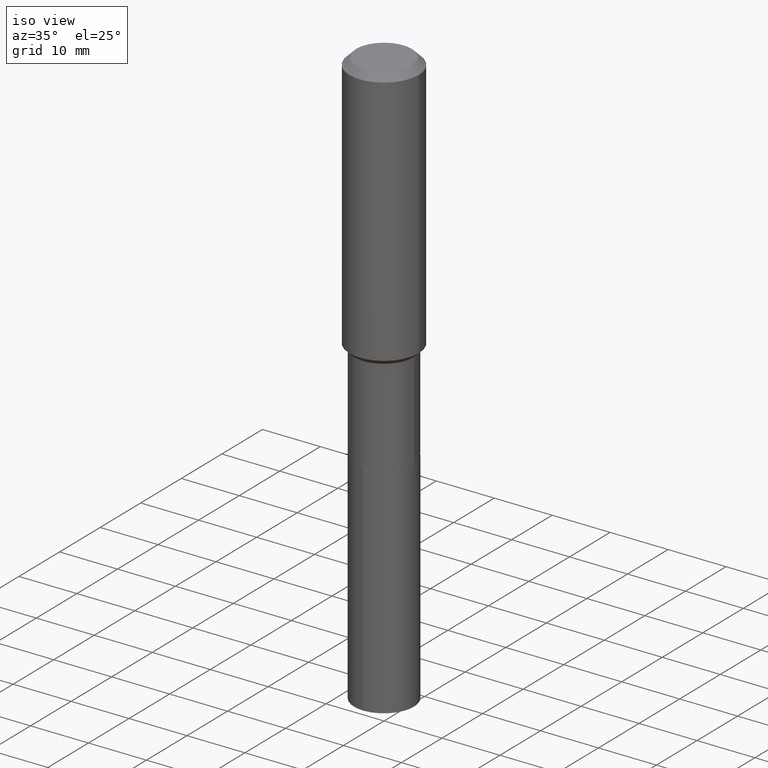
[diagram: clean part render]
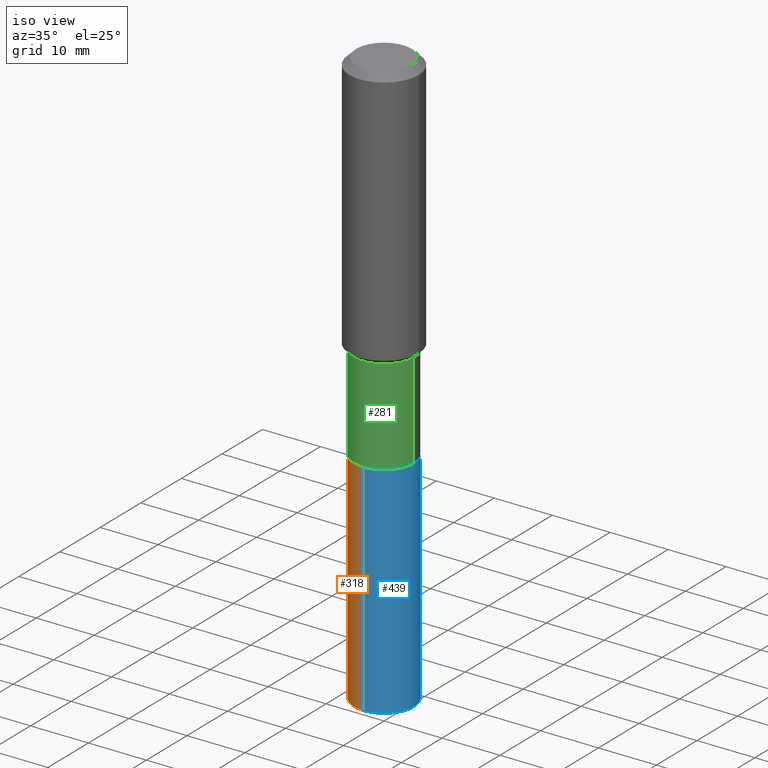
[diagram: same view with three faces highlighted in distinct colors, each labeled with its STEP entity id]
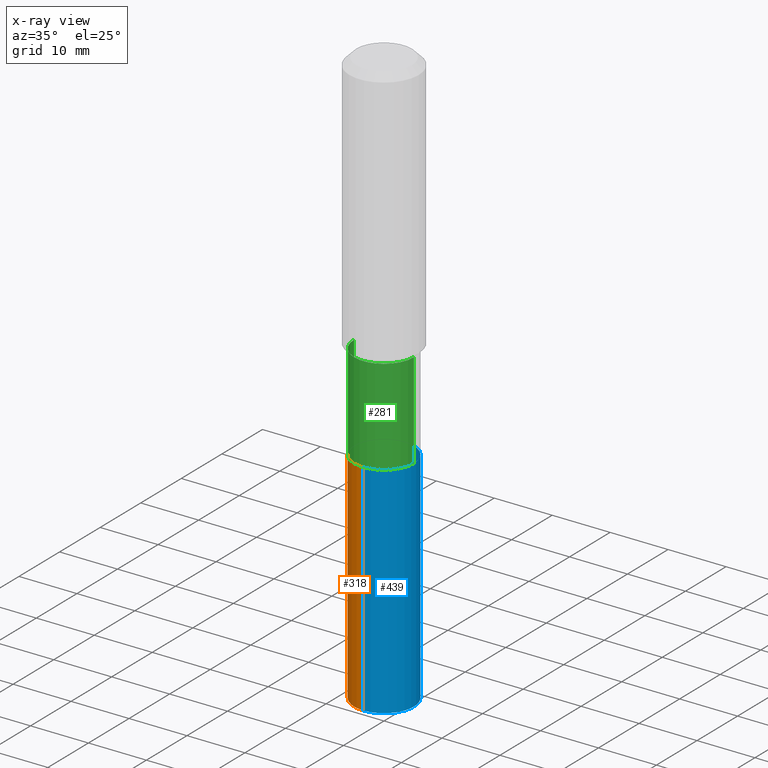
[diagram: x-ray of the same camera — body ghosted, the three highlighted faces saturated]
A machine part, iso view with three faces highlighted in distinct colors.
The next image is the same camera in x-ray (body ghosted, the three faces saturated) — at least one of them is partly hidden behind the body in this view.
Their STEP definitions:

[orange] entity #318 — the highlighted cylindrical surface (edge-blend (fillet) strip) has radius 5.1498 mm, axis along (-0, 0, 1).
#7 = LINE ( 'NONE', #458, #246 ) ;
#28 = CARTESIAN_POINT ( 'NONE',  ( -1.415795682900794232E-15, -0.2027500000000137803, -3.935834651069069601 ) ) ;
#45 = CARTESIAN_POINT ( 'NONE',  ( 1.440625396753699464E-15, 0.2027499999999914648, -2.440900000000000514 ) ) ;
#78 = VECTOR ( 'NONE', #87, 39.37007874015748143 ) ;
#82 = ORIENTED_EDGE ( 'NONE', *, *, #342, .F. ) ;
#83 = ORIENTED_EDGE ( 'NONE', *, *, #375, .F. ) ;
#85 = ORIENTED_EDGE ( 'NONE', *, *, #355, .T. ) ;
#87 = DIRECTION ( 'NONE',  ( -2.445399602320894689E-29, 3.491580442715579660E-15, 1.000000000000000000 ) ) ;
#106 = CYLINDRICAL_SURFACE ( 'NONE', #114, 0.2027500000000000135 ) ;
#114 = AXIS2_PLACEMENT_3D ( 'NONE', #213, #249, #412 ) ;
#146 = AXIS2_PLACEMENT_3D ( 'NONE', #456, #340, #294 ) ;
#175 = CARTESIAN_POINT ( 'NONE',  ( -1.415795682900830717E-15, -0.2027500000000085345, -2.440899999999999181 ) ) ;
#192 = CARTESIAN_POINT ( 'NONE',  ( 1.440625396753662585E-15, 0.2027499999999914648, -2.440900000000000514 ) ) ;
#213 = CARTESIAN_POINT ( 'NONE',  ( 5.969144809017299038E-29, -8.522356799982232966E-15, -2.440900000000000070 ) ) ;
#221 = VERTEX_POINT ( 'NONE', #175 ) ;
#223 = DIRECTION ( 'NONE',  ( -2.445399602320894689E-29, 3.491580442715579660E-15, 1.000000000000000000 ) ) ;
#246 = VECTOR ( 'NONE', #223, 39.37007874015748143 ) ;
#249 = DIRECTION ( 'NONE',  ( -2.445399602320894408E-29, 3.491580442715579660E-15, 1.000000000000000000 ) ) ;
#260 = EDGE_LOOP ( 'NONE', ( #82, #370, #85, #83 ) ) ;
#291 = LINE ( 'NONE', #192, #78 ) ;
#294 = DIRECTION ( 'NONE',  ( -6.982962677686265922E-15, -1.000000000000000000, 2.694794568349458162E-15 ) ) ;
#297 = CIRCLE ( 'NONE', #146, 0.2027500000000000135 ) ;
#307 = AXIS2_PLACEMENT_3D ( 'NONE', #420, #378, #430 ) ;
#318 = ADVANCED_FACE ( 'NONE', ( #485 ), #106, .T. ) ;
#332 = CARTESIAN_POINT ( 'NONE',  ( 1.440625396753699859E-15, 0.2027499999999863578, -3.935834651069070933 ) ) ;
#340 = DIRECTION ( 'NONE',  ( -2.445399602320894408E-29, 3.491580442715579660E-15, 1.000000000000000000 ) ) ;
#342 = EDGE_CURVE ( 'NONE', #372, #385, #291, .T. ) ;
#351 = EDGE_CURVE ( 'NONE', #372, #459, #297, .T. ) ;
#355 = EDGE_CURVE ( 'NONE', #459, #221, #7, .T. ) ;
#365 = CIRCLE ( 'NONE', #307, 0.2027500000000000135 ) ;
#370 = ORIENTED_EDGE ( 'NONE', *, *, #351, .T. ) ;
#372 = VERTEX_POINT ( 'NONE', #332 ) ;
#375 = EDGE_CURVE ( 'NONE', #385, #221, #365, .T. ) ;
#378 = DIRECTION ( 'NONE',  ( -2.445399602320894408E-29, 3.491580442715579660E-15, 1.000000000000000000 ) ) ;
#385 = VERTEX_POINT ( 'NONE', #45 ) ;
#412 = DIRECTION ( 'NONE',  ( -6.982962677686265922E-15, -1.000000000000000000, 4.042191852524186848E-15 ) ) ;
#420 = CARTESIAN_POINT ( 'NONE',  ( 5.969144809017299038E-29, -8.522356799982232966E-15, -2.440900000000000070 ) ) ;
#430 = DIRECTION ( 'NONE',  ( -6.982962677686265922E-15, -1.000000000000000000, 4.042191852524186848E-15 ) ) ;
#456 = CARTESIAN_POINT ( 'NONE',  ( 9.624857410237329995E-29, -1.374204139079284001E-14, -3.935834651069070045 ) ) ;
#458 = CARTESIAN_POINT ( 'NONE',  ( -1.415795682900830717E-15, -0.2027500000000085345, -2.440899999999999181 ) ) ;
#459 = VERTEX_POINT ( 'NONE', #28 ) ;
#485 = FACE_OUTER_BOUND ( 'NONE', #260, .T. ) ;

[blue] entity #439 — the highlighted cylindrical surface (edge-blend (fillet) strip) has radius 5.1498 mm, axis along (-0, 0, 1).
#7 = LINE ( 'NONE', #458, #246 ) ;
#16 = DIRECTION ( 'NONE',  ( -2.445399602320894408E-29, 3.491580442715579660E-15, 1.000000000000000000 ) ) ;
#18 = CIRCLE ( 'NONE', #428, 0.2027500000000000135 ) ;
#28 = CARTESIAN_POINT ( 'NONE',  ( -1.415795682900794232E-15, -0.2027500000000137803, -3.935834651069069601 ) ) ;
#45 = CARTESIAN_POINT ( 'NONE',  ( 1.440625396753699464E-15, 0.2027499999999914648, -2.440900000000000514 ) ) ;
#61 = CARTESIAN_POINT ( 'NONE',  ( 5.969144809017299038E-29, -8.522356799982232966E-15, -2.440900000000000070 ) ) ;
#74 = CARTESIAN_POINT ( 'NONE',  ( 9.624857410237329995E-29, -1.374204139079284001E-14, -3.935834651069070045 ) ) ;
#78 = VECTOR ( 'NONE', #87, 39.37007874015748143 ) ;
#87 = DIRECTION ( 'NONE',  ( -2.445399602320894689E-29, 3.491580442715579660E-15, 1.000000000000000000 ) ) ;
#113 = ORIENTED_EDGE ( 'NONE', *, *, #300, .T. ) ;
#124 = EDGE_LOOP ( 'NONE', ( #113, #341, #330, #335 ) ) ;
#140 = CARTESIAN_POINT ( 'NONE',  ( 5.969144809017299038E-29, -8.522356799982232966E-15, -2.440900000000000070 ) ) ;
#152 = AXIS2_PLACEMENT_3D ( 'NONE', #140, #177, #319 ) ;
#175 = CARTESIAN_POINT ( 'NONE',  ( -1.415795682900830717E-15, -0.2027500000000085345, -2.440899999999999181 ) ) ;
#177 = DIRECTION ( 'NONE',  ( -2.445399602320894408E-29, 3.491580442715579660E-15, 1.000000000000000000 ) ) ;
#192 = CARTESIAN_POINT ( 'NONE',  ( 1.440625396753662585E-15, 0.2027499999999914648, -2.440900000000000514 ) ) ;
#193 = CIRCLE ( 'NONE', #152, 0.2027500000000000135 ) ;
#209 = FACE_OUTER_BOUND ( 'NONE', #124, .T. ) ;
#221 = VERTEX_POINT ( 'NONE', #175 ) ;
#223 = DIRECTION ( 'NONE',  ( -2.445399602320894689E-29, 3.491580442715579660E-15, 1.000000000000000000 ) ) ;
#243 = DIRECTION ( 'NONE',  ( -6.982962677686265922E-15, -1.000000000000000000, 2.694794568349458162E-15 ) ) ;
#246 = VECTOR ( 'NONE', #223, 39.37007874015748143 ) ;
#278 = EDGE_CURVE ( 'NONE', #221, #385, #193, .T. ) ;
#291 = LINE ( 'NONE', #192, #78 ) ;
#300 = EDGE_CURVE ( 'NONE', #459, #372, #18, .T. ) ;
#319 = DIRECTION ( 'NONE',  ( -6.982962677686265922E-15, -1.000000000000000000, 4.042191852524186848E-15 ) ) ;
#330 = ORIENTED_EDGE ( 'NONE', *, *, #278, .F. ) ;
#331 = AXIS2_PLACEMENT_3D ( 'NONE', #61, #16, #400 ) ;
#332 = CARTESIAN_POINT ( 'NONE',  ( 1.440625396753699859E-15, 0.2027499999999863578, -3.935834651069070933 ) ) ;
#335 = ORIENTED_EDGE ( 'NONE', *, *, #355, .F. ) ;
#341 = ORIENTED_EDGE ( 'NONE', *, *, #342, .T. ) ;
#342 = EDGE_CURVE ( 'NONE', #372, #385, #291, .T. ) ;
#355 = EDGE_CURVE ( 'NONE', #459, #221, #7, .T. ) ;
#372 = VERTEX_POINT ( 'NONE', #332 ) ;
#385 = VERTEX_POINT ( 'NONE', #45 ) ;
#400 = DIRECTION ( 'NONE',  ( -6.982962677686265922E-15, -1.000000000000000000, 4.042191852524186848E-15 ) ) ;
#428 = AXIS2_PLACEMENT_3D ( 'NONE', #74, #454, #243 ) ;
#439 = ADVANCED_FACE ( 'NONE', ( #209 ), #443, .T. ) ;
#443 = CYLINDRICAL_SURFACE ( 'NONE', #331, 0.2027500000000000135 ) ;
#454 = DIRECTION ( 'NONE',  ( -2.445399602320894408E-29, 3.491580442715579660E-15, 1.000000000000000000 ) ) ;
#458 = CARTESIAN_POINT ( 'NONE',  ( -1.415795682900830717E-15, -0.2027500000000085345, -2.440899999999999181 ) ) ;
#459 = VERTEX_POINT ( 'NONE', #28 ) ;

[green] entity #281 — the highlighted cylindrical surface (edge-blend (fillet) strip) has radius 5.1498 mm, axis along (-0, 0, 1).
#5 = VERTEX_POINT ( 'NONE', #440 ) ;
#10 = CIRCLE ( 'NONE', #313, 0.2027500000000000135 ) ;
#33 = CIRCLE ( 'NONE', #373, 0.2027499999999999303 ) ;
#34 = DIRECTION ( 'NONE',  ( 1.000000000000000000, -6.982962677686266711E-15, 4.876176775795935793E-29 ) ) ;
#50 = VECTOR ( 'NONE', #51, 39.37007874015748143 ) ;
#51 = DIRECTION ( 'NONE',  ( -2.445468806185136877E-29, 3.491481338843145188E-15, 1.000000000000000000 ) ) ;
#96 = DIRECTION ( 'NONE',  ( 1.000000000000000000, -6.982962677686266711E-15, 0.000000000000000000 ) ) ;
#111 = LINE ( 'NONE', #261, #139 ) ;
#132 = EDGE_CURVE ( 'NONE', #382, #447, #33, .T. ) ;
#139 = VECTOR ( 'NONE', #254, 39.37007874015748143 ) ;
#155 = CARTESIAN_POINT ( 'NONE',  ( 0.2027499999999999858, -1.415795682900890473E-15, 9.886448412926258951E-30 ) ) ;
#156 = ORIENTED_EDGE ( 'NONE', *, *, #384, .T. ) ;
#233 = DIRECTION ( 'NONE',  ( -2.445468806185136597E-29, 3.491481338843145583E-15, 1.000000000000000000 ) ) ;
#234 = DIRECTION ( 'NONE',  ( -2.445468806185136597E-29, 3.491481338843145583E-15, 1.000000000000000000 ) ) ;
#244 = ORIENTED_EDGE ( 'NONE', *, *, #132, .F. ) ;
#254 = DIRECTION ( 'NONE',  ( -2.445468806185136877E-29, 3.491481338843145188E-15, 1.000000000000000000 ) ) ;
#261 = CARTESIAN_POINT ( 'NONE',  ( -0.2027499999999999858, 1.440625396753603026E-15, -9.973140895491819537E-30 ) ) ;
#269 = EDGE_LOOP ( 'NONE', ( #468, #449, #156, #244 ) ) ;
#281 = ADVANCED_FACE ( 'NONE', ( #363 ), #369, .T. ) ;
#285 = DIRECTION ( 'NONE',  ( -2.445468806185136597E-29, 3.491481338843145583E-15, 1.000000000000000000 ) ) ;
#298 = LINE ( 'NONE', #155, #50 ) ;
#310 = CARTESIAN_POINT ( 'NONE',  ( 4.376166428668302424E-29, -6.248005855859809764E-15, -1.789500000000000091 ) ) ;
#313 = AXIS2_PLACEMENT_3D ( 'NONE', #483, #234, #96 ) ;
#322 = AXIS2_PLACEMENT_3D ( 'NONE', #489, #285, #34 ) ;
#345 = CARTESIAN_POINT ( 'NONE',  ( 0.2027500000000000135, -9.936406742213702921E-15, -2.440399999999999903 ) ) ;
#363 = FACE_OUTER_BOUND ( 'NONE', #269, .T. ) ;
#369 = CYLINDRICAL_SURFACE ( 'NONE', #322, 0.2027499999999999858 ) ;
#373 = AXIS2_PLACEMENT_3D ( 'NONE', #310, #233, #393 ) ;
#381 = CARTESIAN_POINT ( 'NONE',  ( -0.2027499999999999303, -5.943683060832708770E-15, -1.789500000000000091 ) ) ;
#382 = VERTEX_POINT ( 'NONE', #381 ) ;
#384 = EDGE_CURVE ( 'NONE', #463, #447, #298, .T. ) ;
#393 = DIRECTION ( 'NONE',  ( 1.000000000000000000, -6.982962677686269866E-15, 0.000000000000000000 ) ) ;
#397 = CARTESIAN_POINT ( 'NONE',  ( 0.2027499999999999303, -7.663801538760700434E-15, -1.789500000000000091 ) ) ;
#398 = EDGE_CURVE ( 'NONE', #5, #382, #111, .T. ) ;
#440 = CARTESIAN_POINT ( 'NONE',  ( -0.2027500000000000135, -5.943683060832708770E-15, -2.440399999999999903 ) ) ;
#447 = VERTEX_POINT ( 'NONE', #397 ) ;
#449 = ORIENTED_EDGE ( 'NONE', *, *, #466, .T. ) ;
#463 = VERTEX_POINT ( 'NONE', #345 ) ;
#466 = EDGE_CURVE ( 'NONE', #5, #463, #10, .T. ) ;
#468 = ORIENTED_EDGE ( 'NONE', *, *, #398, .F. ) ;
#483 = CARTESIAN_POINT ( 'NONE',  ( 5.967922074614207358E-29, -8.520611059312812251E-15, -2.440399999999999903 ) ) ;
#489 = CARTESIAN_POINT ( 'NONE',  ( 0.000000000000000000, 0.000000000000000000, 0.000000000000000000 ) ) ;